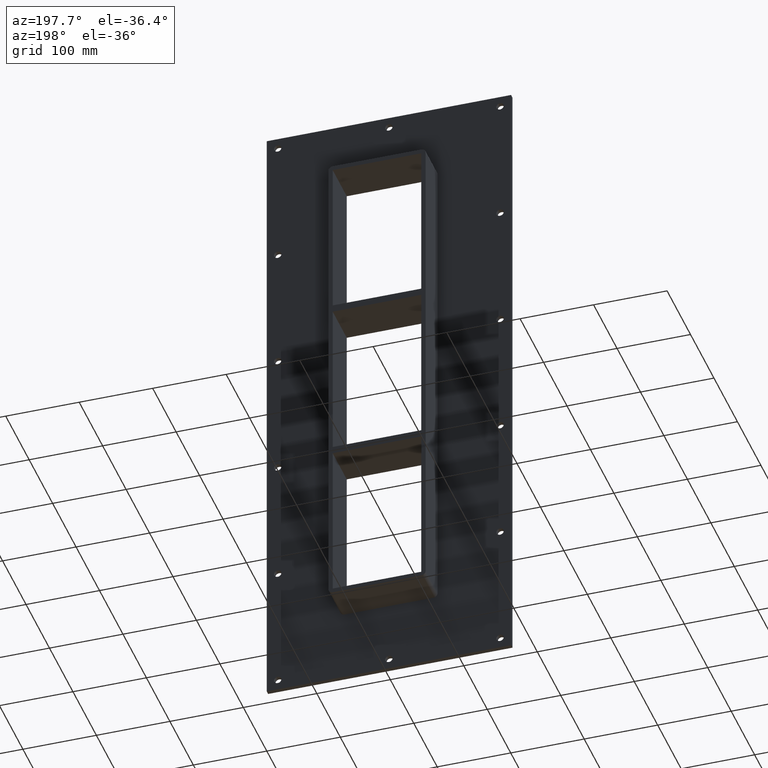
[diagram: clean part render]
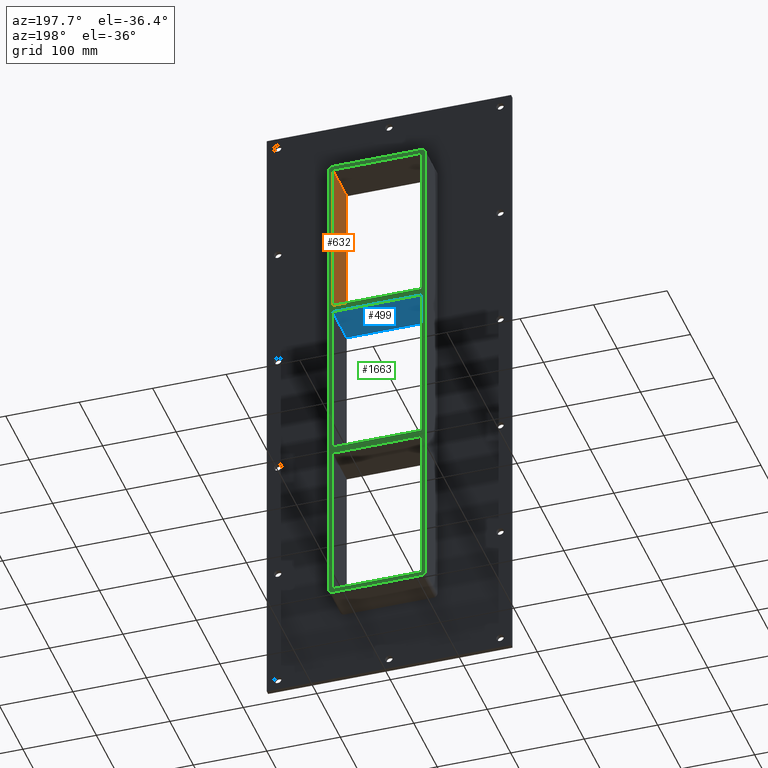
[diagram: same view with three faces highlighted in distinct colors, each labeled with its STEP entity id]
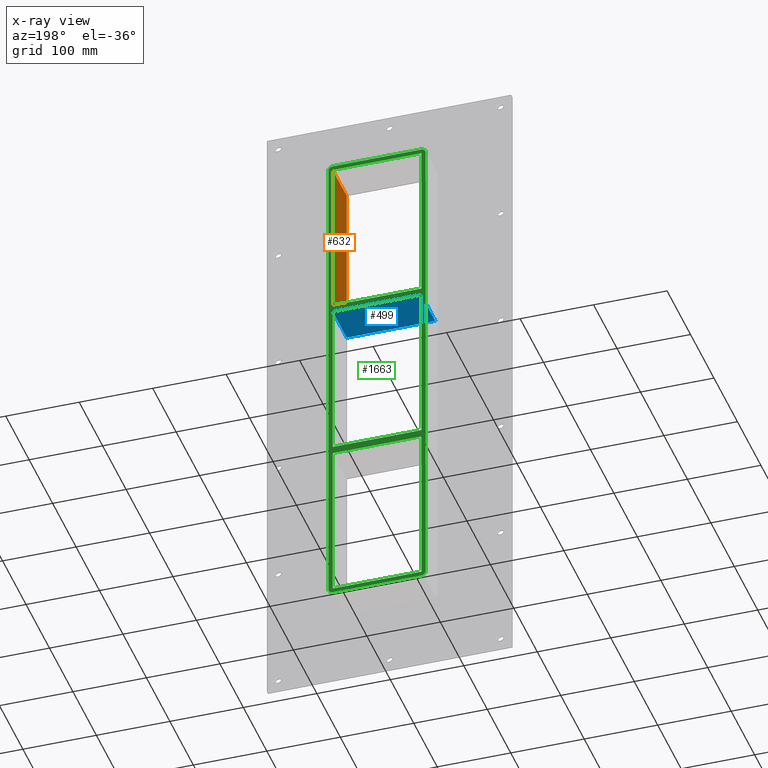
[diagram: x-ray of the same camera — body ghosted, the three highlighted faces saturated]
A machine part, auxiliary view with three faces highlighted in distinct colors.
The next image is the same camera in x-ray (body ghosted, the three faces saturated) — at least one of them is partly hidden behind the body in this view.
Their STEP definitions:

[orange] entity #632 — the highlighted planar face has unit normal (1, 0, 0).
#507=CARTESIAN_POINT('',(60.249999999999915,-3.0,118.99999999999994));
#508=VERTEX_POINT('',#507);
#515=CARTESIAN_POINT('',(60.249999999999922,57.0,118.99999999999994));
#516=VERTEX_POINT('',#515);
#517=CARTESIAN_POINT('',(60.25,57.000000000000007,118.99999999999993));
#518=DIRECTION('',(0.0,-1.0,0.0));
#519=VECTOR('',#518,60.000000000000007);
#520=LINE('',#517,#519);
#521=EDGE_CURVE('',#516,#508,#520,.T.);
#602=CARTESIAN_POINT('',(60.25,0.0,337.0));
#603=DIRECTION('',(1.0,0.0,0.0));
#604=DIRECTION('',(0.0,0.0,-1.0));
#605=AXIS2_PLACEMENT_3D('',#602,#603,#604);
#606=PLANE('',#605);
#607=ORIENTED_EDGE('',*,*,#521,.T.);
#608=CARTESIAN_POINT('',(60.25,-3.0,337.0));
#609=VERTEX_POINT('',#608);
#610=CARTESIAN_POINT('',(60.25,-3.0,337.0));
#611=DIRECTION('',(0.0,0.0,-1.0));
#612=VECTOR('',#611,218.00000000000006);
#613=LINE('',#610,#612);
#614=EDGE_CURVE('',#609,#508,#613,.T.);
#615=ORIENTED_EDGE('',*,*,#614,.F.);
#616=CARTESIAN_POINT('',(60.25,57.0,337.0));
#617=VERTEX_POINT('',#616);
#618=CARTESIAN_POINT('',(60.25,-3.0,337.0));
#619=DIRECTION('',(0.0,1.0,0.0));
#620=VECTOR('',#619,60.0);
#621=LINE('',#618,#620);
#622=EDGE_CURVE('',#609,#617,#621,.T.);
#623=ORIENTED_EDGE('',*,*,#622,.T.);
#624=CARTESIAN_POINT('',(60.25,57.0,118.99999999999996));
#625=DIRECTION('',(0.0,0.0,1.0));
#626=VECTOR('',#625,218.00000000000006);
#627=LINE('',#624,#626);
#628=EDGE_CURVE('',#516,#617,#627,.T.);
#629=ORIENTED_EDGE('',*,*,#628,.F.);
#630=EDGE_LOOP('',(#607,#615,#623,#629));
#631=FACE_OUTER_BOUND('',#630,.T.);
#632=ADVANCED_FACE('',(#631),#606,.F.);

[blue] entity #499 — the highlighted planar face has unit normal (0, 0, -1).
#460=CARTESIAN_POINT('',(60.249999999996362,-3.0,108.99999999999069));
#461=DIRECTION('',(0.0,0.0,-1.0));
#462=DIRECTION('',(-1.0,0.0,0.0));
#463=AXIS2_PLACEMENT_3D('',#460,#461,#462);
#464=PLANE('',#463);
#465=CARTESIAN_POINT('',(60.249999999996362,-3.0,108.99999999999069));
#466=VERTEX_POINT('',#465);
#467=CARTESIAN_POINT('',(-60.249999999999694,-3.0,108.99999999999056));
#468=VERTEX_POINT('',#467);
#469=CARTESIAN_POINT('',(60.249999999996362,-3.0,108.99999999999069));
#470=DIRECTION('',(-1.0,0.0,0.0));
#471=VECTOR('',#470,120.49999999999606);
#472=LINE('',#469,#471);
#473=EDGE_CURVE('',#466,#468,#472,.T.);
#474=ORIENTED_EDGE('',*,*,#473,.T.);
#475=CARTESIAN_POINT('',(-60.249999999999694,57.0,108.99999999999056));
#476=VERTEX_POINT('',#475);
#477=CARTESIAN_POINT('',(-60.25,57.000000000000007,108.99999999999055));
#478=DIRECTION('',(0.0,-1.0,0.0));
#479=VECTOR('',#478,60.000000000000007);
#480=LINE('',#477,#479);
#481=EDGE_CURVE('',#476,#468,#480,.T.);
#482=ORIENTED_EDGE('',*,*,#481,.F.);
#483=CARTESIAN_POINT('',(60.249999999996369,57.0,108.99999999999069));
#484=VERTEX_POINT('',#483);
#485=CARTESIAN_POINT('',(60.249999999996362,57.0,108.99999999999069));
#486=DIRECTION('',(-1.0,0.0,0.0));
#487=VECTOR('',#486,120.49999999999606);
#488=LINE('',#485,#487);
#489=EDGE_CURVE('',#484,#476,#488,.T.);
#490=ORIENTED_EDGE('',*,*,#489,.F.);
#491=CARTESIAN_POINT('',(60.25,-3.0,108.99999999999068));
#492=DIRECTION('',(0.0,1.0,0.0));
#493=VECTOR('',#492,60.000000000000007);
#494=LINE('',#491,#493);
#495=EDGE_CURVE('',#466,#484,#494,.T.);
#496=ORIENTED_EDGE('',*,*,#495,.F.);
#497=EDGE_LOOP('',(#474,#482,#490,#496));
#498=FACE_OUTER_BOUND('',#497,.T.);
#499=ADVANCED_FACE('',(#498),#464,.T.);

[green] entity #1663 — the highlighted planar face has unit normal (0, 1, 0).
#475=CARTESIAN_POINT('',(-60.249999999999694,57.0,108.99999999999056));
#476=VERTEX_POINT('',#475);
#483=CARTESIAN_POINT('',(60.249999999996369,57.0,108.99999999999069));
#484=VERTEX_POINT('',#483);
#485=CARTESIAN_POINT('',(60.249999999996362,57.0,108.99999999999069));
#486=DIRECTION('',(-1.0,0.0,0.0));
#487=VECTOR('',#486,120.49999999999606);
#488=LINE('',#485,#487);
#489=EDGE_CURVE('',#484,#476,#488,.T.);
#515=CARTESIAN_POINT('',(60.249999999999922,57.0,118.99999999999994));
#516=VERTEX_POINT('',#515);
#523=CARTESIAN_POINT('',(-60.249999999999694,57.0,118.99999999999994));
#524=VERTEX_POINT('',#523);
#525=CARTESIAN_POINT('',(-60.249999999999694,57.0,118.99999999999994));
#526=DIRECTION('',(1.0,0.0,0.0));
#527=VECTOR('',#526,120.49999999999962);
#528=LINE('',#525,#527);
#529=EDGE_CURVE('',#524,#516,#528,.T.);
#546=CARTESIAN_POINT('',(-60.25,57.0,337.0));
#547=VERTEX_POINT('',#546);
#548=CARTESIAN_POINT('',(-60.25,57.0,337.0));
#549=DIRECTION('',(0.0,0.0,-1.0));
#550=VECTOR('',#549,218.00000000000003);
#551=LINE('',#548,#550);
#552=EDGE_CURVE('',#547,#524,#551,.T.);
#577=CARTESIAN_POINT('',(60.249999999999922,57.0,-109.00000000000006));
#578=VERTEX_POINT('',#577);
#579=CARTESIAN_POINT('',(60.25,57.0,-109.00000000000006));
#580=DIRECTION('',(0.0,0.0,1.0));
#581=VECTOR('',#580,217.99999999999076);
#582=LINE('',#579,#581);
#583=EDGE_CURVE('',#578,#484,#582,.T.);
#616=CARTESIAN_POINT('',(60.25,57.0,337.0));
#617=VERTEX_POINT('',#616);
#624=CARTESIAN_POINT('',(60.25,57.0,118.99999999999996));
#625=DIRECTION('',(0.0,0.0,1.0));
#626=VECTOR('',#625,218.00000000000006);
#627=LINE('',#624,#626);
#628=EDGE_CURVE('',#516,#617,#627,.T.);
#648=CARTESIAN_POINT('',(-60.249999999999694,57.0,-119.00000000000944));
#649=VERTEX_POINT('',#648);
#656=CARTESIAN_POINT('',(60.249999999996369,57.0,-119.00000000000931));
#657=VERTEX_POINT('',#656);
#658=CARTESIAN_POINT('',(60.249999999996362,57.0,-119.00000000000931));
#659=DIRECTION('',(-1.0,0.0,0.0));
#660=VECTOR('',#659,120.49999999999606);
#661=LINE('',#658,#660);
#662=EDGE_CURVE('',#657,#649,#661,.T.);
#687=CARTESIAN_POINT('',(-60.249999999999694,57.0,-109.00000000000006));
#688=VERTEX_POINT('',#687);
#689=CARTESIAN_POINT('',(-60.249999999999694,57.0,-109.00000000000006));
#690=DIRECTION('',(1.0,0.0,0.0));
#691=VECTOR('',#690,120.49999999999962);
#692=LINE('',#689,#691);
#693=EDGE_CURVE('',#688,#578,#692,.T.);
#717=CARTESIAN_POINT('',(-60.25,57.0,108.99999999999059));
#718=DIRECTION('',(0.0,0.0,-1.0));
#719=VECTOR('',#718,217.99999999999065);
#720=LINE('',#717,#719);
#721=EDGE_CURVE('',#476,#688,#720,.T.);
#732=CARTESIAN_POINT('',(60.25,57.0,-337.0));
#733=VERTEX_POINT('',#732);
#734=CARTESIAN_POINT('',(60.25,57.0,-337.00000000000006));
#735=DIRECTION('',(0.0,0.0,1.0));
#736=VECTOR('',#735,217.99999999999073);
#737=LINE('',#734,#736);
#738=EDGE_CURVE('',#733,#657,#737,.T.);
#1143=CARTESIAN_POINT('',(-60.25,57.0,-337.0));
#1144=VERTEX_POINT('',#1143);
#1151=CARTESIAN_POINT('',(-60.25,57.0,-119.00000000000944));
#1152=DIRECTION('',(0.0,0.0,-1.0));
#1153=VECTOR('',#1152,217.99999999999056);
#1154=LINE('',#1151,#1153);
#1155=EDGE_CURVE('',#649,#1144,#1154,.T.);
#1198=CARTESIAN_POINT('',(66.25,57.0,337.00000000000011));
#1199=VERTEX_POINT('',#1198);
#1206=CARTESIAN_POINT('',(60.25,57.0,343.00000000000011));
#1207=VERTEX_POINT('',#1206);
#1208=CARTESIAN_POINT('',(60.25,57.0,337.00000000000011));
#1209=DIRECTION('',(0.0,-1.0,0.0));
#1210=DIRECTION('',(0.707106781186542,0.0,0.707106781186553));
#1211=AXIS2_PLACEMENT_3D('',#1208,#1209,#1210);
#1212=CIRCLE('',#1211,6.000000000000001);
#1213=EDGE_CURVE('',#1199,#1207,#1212,.T.);
#1254=CARTESIAN_POINT('',(66.25,57.0,-336.99999999999989));
#1255=VERTEX_POINT('',#1254);
#1262=CARTESIAN_POINT('',(66.25,57.0,337.00000000000011));
#1263=DIRECTION('',(0.0,0.0,-1.0));
#1264=VECTOR('',#1263,674.0);
#1265=LINE('',#1262,#1264);
#1266=EDGE_CURVE('',#1199,#1255,#1265,.T.);
#1327=CARTESIAN_POINT('',(60.25,57.0,-343.0));
#1328=VERTEX_POINT('',#1327);
#1335=CARTESIAN_POINT('',(60.25,57.0,-336.99999999999989));
#1336=DIRECTION('',(0.0,-1.0,0.0));
#1337=DIRECTION('',(0.707106781186542,0.0,-0.707106781186553));
#1338=AXIS2_PLACEMENT_3D('',#1335,#1336,#1337);
#1339=CIRCLE('',#1338,6.000000000000001);
#1340=EDGE_CURVE('',#1328,#1255,#1339,.T.);
#1401=CARTESIAN_POINT('',(-60.25,57.0,-343.0));
#1402=VERTEX_POINT('',#1401);
#1409=CARTESIAN_POINT('',(60.25,57.0,-343.0));
#1410=DIRECTION('',(-1.0,0.0,0.0));
#1411=VECTOR('',#1410,120.5);
#1412=LINE('',#1409,#1411);
#1413=EDGE_CURVE('',#1328,#1402,#1412,.T.);
#1511=CARTESIAN_POINT('',(-66.25,57.0,-337.0));
#1512=VERTEX_POINT('',#1511);
#1519=CARTESIAN_POINT('',(-60.25,57.0,-337.0));
#1520=DIRECTION('',(0.0,-1.0,0.0));
#1521=DIRECTION('',(-0.707106781186551,0.0,-0.707106781186544));
#1522=AXIS2_PLACEMENT_3D('',#1519,#1520,#1521);
#1523=CIRCLE('',#1522,6.0);
#1524=EDGE_CURVE('',#1512,#1402,#1523,.T.);
#1536=CARTESIAN_POINT('',(-66.25,57.0,337.0));
#1537=VERTEX_POINT('',#1536);
#1544=CARTESIAN_POINT('',(-66.25,57.0,-337.00000000000006));
#1545=DIRECTION('',(0.0,0.0,1.0));
#1546=VECTOR('',#1545,674.0);
#1547=LINE('',#1544,#1546);
#1548=EDGE_CURVE('',#1512,#1537,#1547,.T.);
#1560=CARTESIAN_POINT('',(-60.25,57.0,343.00000000000011));
#1561=VERTEX_POINT('',#1560);
#1568=CARTESIAN_POINT('',(-60.25,57.0,337.0));
#1569=DIRECTION('',(0.0,-1.0,0.0));
#1570=DIRECTION('',(-0.707106781186542,0.0,0.707106781186553));
#1571=AXIS2_PLACEMENT_3D('',#1568,#1569,#1570);
#1572=CIRCLE('',#1571,6.000000000000001);
#1573=EDGE_CURVE('',#1561,#1537,#1572,.T.);
#1586=CARTESIAN_POINT('',(-60.25,57.0,343.00000000000011));
#1587=DIRECTION('',(1.0,0.0,0.0));
#1588=VECTOR('',#1587,120.5);
#1589=LINE('',#1586,#1588);
#1590=EDGE_CURVE('',#1561,#1207,#1589,.T.);
#1602=CARTESIAN_POINT('',(60.250000000000014,57.0,337.0));
#1603=DIRECTION('',(-1.0,0.0,0.0));
#1604=VECTOR('',#1603,120.50000000000001);
#1605=LINE('',#1602,#1604);
#1606=EDGE_CURVE('',#617,#547,#1605,.T.);
#1621=CARTESIAN_POINT('',(-60.250000000000014,57.0,-337.0));
#1622=DIRECTION('',(1.0,0.0,0.0));
#1623=VECTOR('',#1622,120.50000000000001);
#1624=LINE('',#1621,#1623);
#1625=EDGE_CURVE('',#1144,#733,#1624,.T.);
#1630=CARTESIAN_POINT('',(0.0,57.0,7.292070E-014));
#1631=DIRECTION('',(0.0,1.0,0.0));
#1632=DIRECTION('',(0.0,0.0,1.0));
#1633=AXIS2_PLACEMENT_3D('',#1630,#1631,#1632);
#1634=PLANE('',#1633);
#1635=ORIENTED_EDGE('',*,*,#1340,.F.);
#1636=ORIENTED_EDGE('',*,*,#1413,.T.);
#1637=ORIENTED_EDGE('',*,*,#1524,.F.);
#1638=ORIENTED_EDGE('',*,*,#1548,.T.);
#1639=ORIENTED_EDGE('',*,*,#1573,.F.);
#1640=ORIENTED_EDGE('',*,*,#1590,.T.);
#1641=ORIENTED_EDGE('',*,*,#1213,.F.);
#1642=ORIENTED_EDGE('',*,*,#1266,.T.);
#1643=EDGE_LOOP('',(#1635,#1636,#1637,#1638,#1639,#1640,#1641,#1642));
#1644=FACE_OUTER_BOUND('',#1643,.T.);
#1645=ORIENTED_EDGE('',*,*,#721,.T.);
#1646=ORIENTED_EDGE('',*,*,#693,.T.);
#1647=ORIENTED_EDGE('',*,*,#583,.T.);
#1648=ORIENTED_EDGE('',*,*,#489,.T.);
#1649=EDGE_LOOP('',(#1645,#1646,#1647,#1648));
#1650=FACE_BOUND('',#1649,.T.);
#1651=ORIENTED_EDGE('',*,*,#1155,.T.);
#1652=ORIENTED_EDGE('',*,*,#1625,.T.);
#1653=ORIENTED_EDGE('',*,*,#738,.T.);
#1654=ORIENTED_EDGE('',*,*,#662,.T.);
#1655=EDGE_LOOP('',(#1651,#1652,#1653,#1654));
#1656=FACE_BOUND('',#1655,.T.);
#1657=ORIENTED_EDGE('',*,*,#529,.T.);
#1658=ORIENTED_EDGE('',*,*,#628,.T.);
#1659=ORIENTED_EDGE('',*,*,#1606,.T.);
#1660=ORIENTED_EDGE('',*,*,#552,.T.);
#1661=EDGE_LOOP('',(#1657,#1658,#1659,#1660));
#1662=FACE_BOUND('',#1661,.T.);
#1663=ADVANCED_FACE('',(#1644,#1650,#1656,#1662),#1634,.T.);